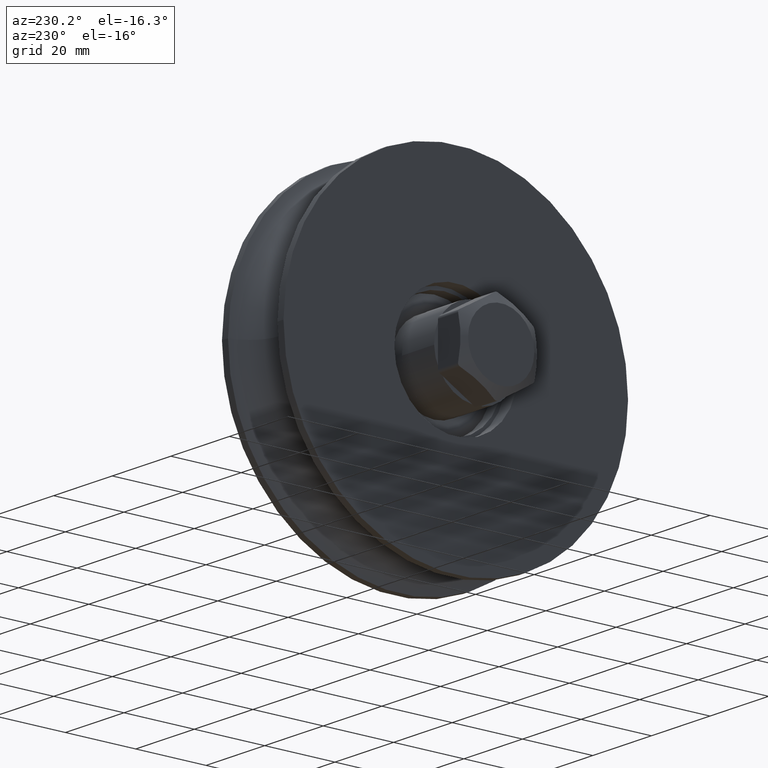
[diagram: clean part render]
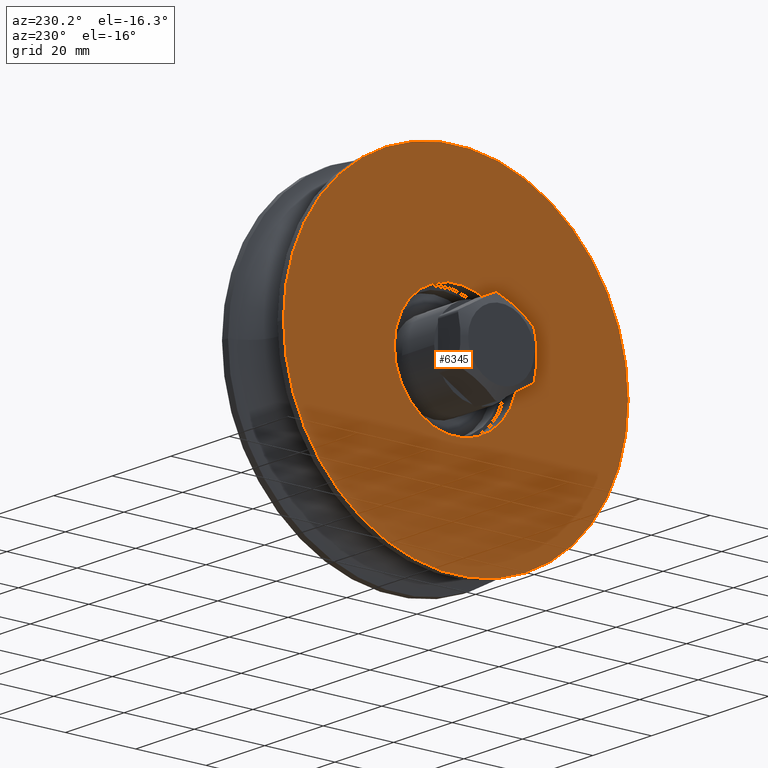
[diagram: same view with one face highlighted and labeled with its STEP entity id]
A machine part, auxiliary view. The second image highlights one B-rep face of the part: STEP entity #6345.
In plain terms, the highlighted planar face has unit normal (-1, -0, 0).
Its self-contained STEP definition (entity closure, byte-faithful):
#184 = AXIS2_PLACEMENT_3D ( 'NONE', #1016, #5338, #9533 ) ;
#319 = CARTESIAN_POINT ( 'NONE',  ( -10.49999999999999467, 49.00000000000000000, 0.000000000000000000 ) ) ;
#457 = VERTEX_POINT ( 'NONE', #4654 ) ;
#640 = VERTEX_POINT ( 'NONE', #319 ) ;
#868 = DIRECTION ( 'NONE',  ( -1.000000000000000000, -1.836970198721029934E-16, 0.000000000000000000 ) ) ;
#1016 = CARTESIAN_POINT ( 'NONE',  ( -10.49999999999999822, 49.00000000000000000, 0.000000000000000000 ) ) ;
#1108 = CIRCLE ( 'NONE', #13470, 49.00000000000000000 ) ;
#1192 = PLANE ( 'NONE',  #184 ) ;
#1934 = FACE_BOUND ( 'NONE', #8327, .T. ) ;
#2422 = AXIS2_PLACEMENT_3D ( 'NONE', #7161, #868, #8282 ) ;
#3722 = EDGE_LOOP ( 'NONE', ( #4106 ) ) ;
#3729 = EDGE_CURVE ( 'NONE', #640, #640, #1108, .T. ) ;
#4106 = ORIENTED_EDGE ( 'NONE', *, *, #3729, .F. ) ;
#4539 = DIRECTION ( 'NONE',  ( -7.080503983578804316E-17, 1.000000000000000000, 0.000000000000000000 ) ) ;
#4654 = CARTESIAN_POINT ( 'NONE',  ( -10.49999999999999112, -17.50000000000000355, 0.000000000000000000 ) ) ;
#5338 = DIRECTION ( 'NONE',  ( -1.000000000000000000, -8.007305994425003256E-17, 0.000000000000000000 ) ) ;
#6345 = ADVANCED_FACE ( 'NONE', ( #9373, #1934 ), #1192, .T. ) ;
#7161 = CARTESIAN_POINT ( 'NONE',  ( -10.49999999999999467, -6.876862795212061171E-16, 0.000000000000000000 ) ) ;
#8282 = DIRECTION ( 'NONE',  ( 1.982541115402064863E-16, -1.000000000000000000, 0.000000000000000000 ) ) ;
#8327 = EDGE_LOOP ( 'NONE', ( #12138 ) ) ;
#9258 = EDGE_CURVE ( 'NONE', #457, #457, #13496, .T. ) ;
#9373 = FACE_OUTER_BOUND ( 'NONE', #3722, .T. ) ;
#9533 = DIRECTION ( 'NONE',  ( 8.007305994425003256E-17, -1.000000000000000000, 0.000000000000000000 ) ) ;
#10917 = DIRECTION ( 'NONE',  ( 1.000000000000000000, 8.007305994425003256E-17, -0.000000000000000000 ) ) ;
#11965 = CARTESIAN_POINT ( 'NONE',  ( -10.49999999999999112, 1.389503099032569958E-16, 0.000000000000000000 ) ) ;
#12138 = ORIENTED_EDGE ( 'NONE', *, *, #9258, .F. ) ;
#13470 = AXIS2_PLACEMENT_3D ( 'NONE', #11965, #10917, #4539 ) ;
#13496 = CIRCLE ( 'NONE', #2422, 17.50000000000000355 ) ;